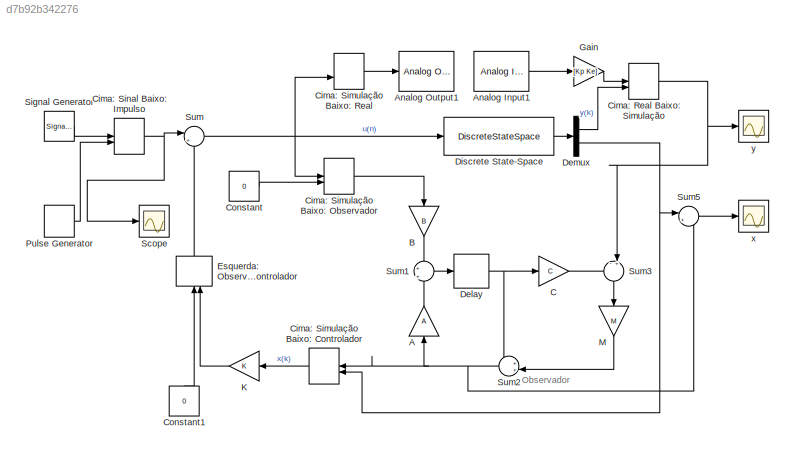
MODEL slx_d7b92b342276
KIND model
CONFIG AbsTol = auto
CONFIG FixedStep = auto
CONFIG MaxStep = auto
CONFIG MinStep = auto
CONFIG RelTol = 1e-3
CONFIG SampleTimeConstraint = Unconstrained
CONFIG Solver = ode45
CONFIG SolverMode = Auto
CONFIG SolverName = ode45
CONFIG StartTime = 0.0
CONFIG StopTime = 20
BLOCK [Gain] A
  Gain = A
  Multiplication = Matrix(K*u) (u vector)
  OutDataTypeStr = Inherit: Inherit via internal rule
  ParamDataTypeStr = Inherit: Inherit via internal rule
  SaturateOnIntegerOverflow = off
BLOCK [Reference] Analog Input1  REF=sldrtlib/Analog Input
  AttributesFormatString = National Instruments\nPCI-6221 [auto]
  Channels = [1 2]
  DataType = 1
  DrvAddress = 4294967295
  DrvName = National_Instruments/PCI-6221
  DrvOptions = [0 0 0 0 0]
  MaxMissedTicks = 10
  Ports = [0, 1]
  RangeMode = 1
  SampleTime = 0.02
  ShowMissedTicks = off
  SourceBlock = sldrtlib/Analog Input
  SourceType = Simulink Desktop Real-Time Analog Input
  VoltRange = 1
  YieldWhenWaiting = off
BLOCK [Reference] Analog Output1  REF=sldrtlib/Analog Output
  AttributesFormatString = National Instruments\nPCI-6221 [auto]
  Channels = 1
  DrvAddress = 4294967295
  DrvName = National_Instruments/PCI-6221
  DrvOptions = [0 0 0 0 0]
  FinalValue = 0
  InitialValue = 0
  MaxMissedTicks = 10
  Ports = [1]
  RangeMode = 1
  SampleTime = 0.02
  ShowMissedTicks = off
  SourceBlock = sldrtlib/Analog Output
  SourceType = Simulink Desktop Real-Time Analog Output
  VoltRange = 1
  YieldWhenWaiting = off
BLOCK [Gain] B
  Gain = B
  Multiplication = Matrix(K*u) (u vector)
  OutDataTypeStr = Inherit: Inherit via internal rule
  ParamDataTypeStr = Inherit: Inherit via internal rule
  SaturateOnIntegerOverflow = off
BLOCK [Gain] C
  Gain = C
  Multiplication = Matrix(K*u) (u vector)
  OutDataTypeStr = Inherit: Inherit via internal rule
  ParamDataTypeStr = Inherit: Inherit via internal rule
  SaturateOnIntegerOverflow = off
BLOCK [ManualSwitch] Cima: Real Baixo: Simulação
  CurrentSetting = 0
BLOCK [ManualSwitch] Cima: Simulação Baixo: Controlador
BLOCK [ManualSwitch] Cima: Simulação Baixo: Observador
  CurrentSetting = 0
BLOCK [ManualSwitch] Cima: Simulação Baixo: Real
BLOCK [ManualSwitch] Cima: Sinal Baixo: Impulso
  CurrentSetting = 0
BLOCK [Constant] Constant
  Value = 0
BLOCK [Constant] Constant1
  Value = 0
BLOCK [Delay] Delay
  DelayLength = 1
  InitialCondition = 0
  InputPortMap = u0
  Ports = [1, 1]
  SampleTime = 0.02
BLOCK [Demux] Demux
  DisplayOption = bar
  Outputs = 2
  Ports = [1, 2]
BLOCK [DiscreteStateSpace] Discrete State-Space
  A = A
  B = B
  C = H
  D = D
  SampleTime = 0.02
BLOCK [ManualSwitch] Esquerda: Observador Direita: Simulação e Controlador
BLOCK [Gain] Gain
  Gain = [Kp Ke]
  Multiplication = Matrix(K*u) (u vector)
  OutDataTypeStr = Inherit: Inherit via internal rule
  ParamDataTypeStr = Inherit: Inherit via internal rule
  SaturateOnIntegerOverflow = off
BLOCK [Gain] K
  Gain = K
  Multiplication = Matrix(K*u) (u vector)
  OutDataTypeStr = Inherit: Inherit via internal rule
  ParamDataTypeStr = Inherit: Inherit via internal rule
  SaturateOnIntegerOverflow = off
BLOCK [Gain] M
  Gain = M
  Multiplication = Matrix(K*u) (u vector)
  OutDataTypeStr = Inherit: Inherit via internal rule
  ParamDataTypeStr = Inherit: Inherit via internal rule
  SaturateOnIntegerOverflow = off
BLOCK [DiscretePulseGenerator] Pulse Generator
  Period = 20
  PhaseDelay = 2
  Ports = [0, 1]
  PulseType = Time based
BLOCK [Scope] Scope
  Floating = off
  NumInputPorts = 1
  Ports = [1]
  SampleInput = on
  ZoomMode = yonly
BLOCK [SignalGenerator] Signal Generator
  Ports = [0, 1]
  Units = rad/sec
BLOCK [Sum] Sum
  IconShape = round
  InputSameDT = off
  Inputs = |+-
  OutDataTypeStr = Inherit: Inherit via internal rule
  Ports = [2, 1]
  SaturateOnIntegerOverflow = off
BLOCK [Sum] Sum1
  IconShape = round
  InputSameDT = off
  Inputs = +|+
  OutDataTypeStr = Inherit: Inherit via internal rule
  Ports = [2, 1]
  SaturateOnIntegerOverflow = off
BLOCK [Sum] Sum2
  IconShape = round
  InputSameDT = off
  Inputs = ++|
  OutDataTypeStr = Inherit: Inherit via internal rule
  Ports = [2, 1]
  SaturateOnIntegerOverflow = off
BLOCK [Sum] Sum3
  IconShape = round
  InputSameDT = off
  Inputs = -+|
  OutDataTypeStr = Inherit: Inherit via internal rule
  Ports = [2, 1]
  SaturateOnIntegerOverflow = off
BLOCK [Sum] Sum5
  IconShape = round
  InputSameDT = off
  Inputs = |+-
  OutDataTypeStr = Inherit: Inherit via internal rule
  Ports = [2, 1]
  SaturateOnIntegerOverflow = off
BLOCK [Scope] x
  Floating = off
  NumInputPorts = 1
  Ports = [1]
  SampleInput = on
  SaveName = ScopeData2
BLOCK [Scope] y
  Floating = off
  NumInputPorts = 1
  Ports = [1]
  SampleInput = on
  SaveName = ScopeData1
ANNOTATION (root): Observador
LINE A:1 -> Sum1:2
LINE Analog Input1:1 -> Gain:1
LINE B:1 -> Sum1:1
LINE C:1 -> Sum3:1
NET Cima: Real Baixo: Simulação:1 -> Sum3:2, y:1
LINE Cima: Simulação Baixo: Controlador:1 -> K:1
LINE Cima: Simulação Baixo: Observador:1 -> B:1
LINE Cima: Simulação Baixo: Real:1 -> Analog Output1:1
NET Cima: Sinal Baixo: Impulso:1 -> Scope:1, Sum:1
LINE Constant1:1 -> Esquerda: Observador Direita: Simulação e Controlador:1
LINE Constant:1 -> Cima: Simulação Baixo: Observador:2
NET Delay:1 -> C:1, Sum2:1
LINE Demux:1 -> Cima: Real Baixo: Simulação:2
NET Demux:2 -> Cima: Simulação Baixo: Controlador:2, Sum5:1
LINE Discrete State-Space:1 -> Demux:1
LINE Esquerda: Observador Direita: Simulação e Controlador:1 -> Sum:2
LINE Gain:1 -> Cima: Real Baixo: Simulação:1
LINE K:1 -> Esquerda: Observador Direita: Simulação e Controlador:2
LINE M:1 -> Sum2:2
LINE Pulse Generator:1 -> Cima: Sinal Baixo: Impulso:2
LINE Signal Generator:1 -> Cima: Sinal Baixo: Impulso:1
LINE Sum1:1 -> Delay:1
NET Sum2:1 -> A:1, Cima: Simulação Baixo: Controlador:1, Sum5:2
LINE Sum3:1 -> M:1
LINE Sum5:1 -> x:1
NET Sum:1 -> Cima: Simulação Baixo: Observador:1, Cima: Simulação Baixo: Real:2, Discrete State-Space:1
note: NET lines group one-source signal fan-out (src -> all destinations, sorted); 1:1 wires keep LINE
